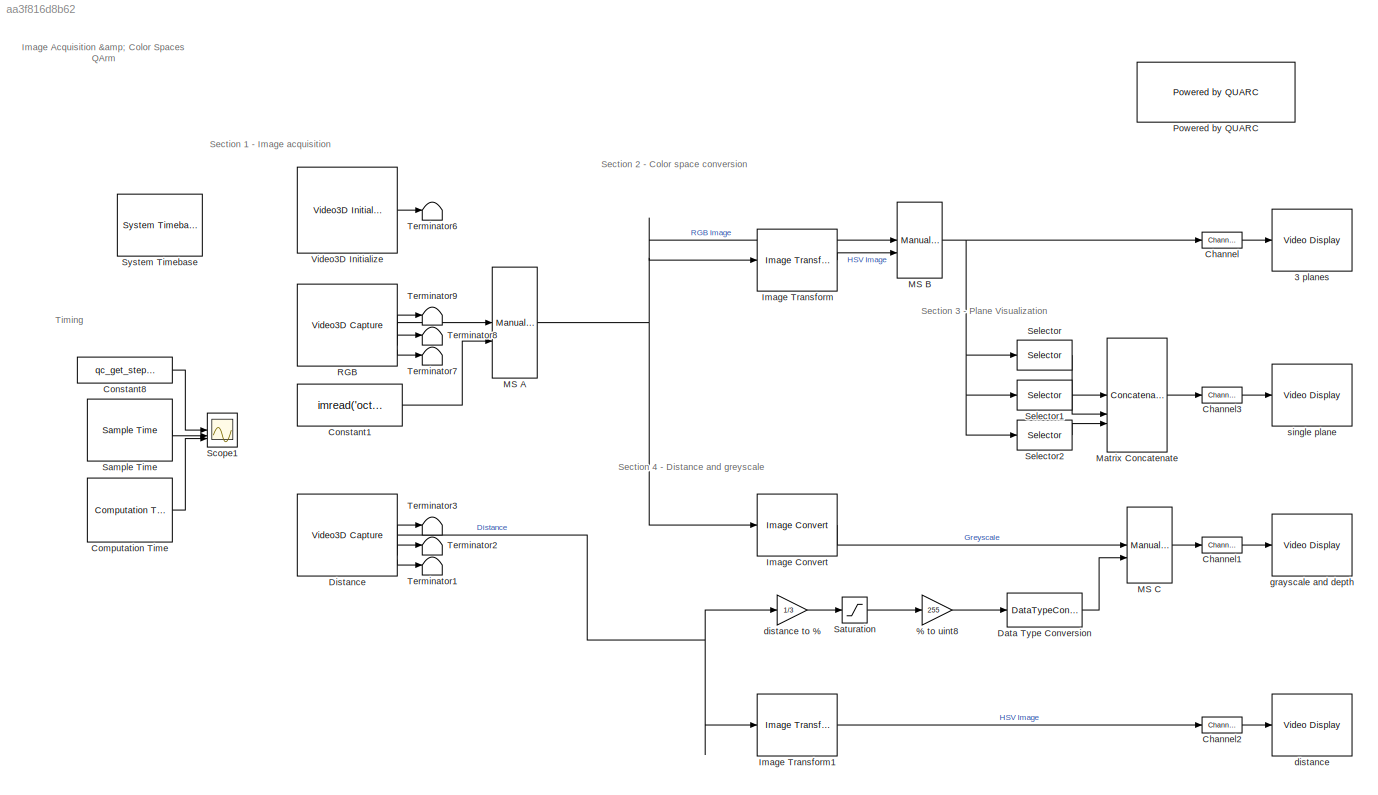
MODEL slx_aa3f816d8b62
KIND model
CONFIG AbsTol = auto
CONFIG EnableMultiTasking = on
CONFIG FixedStep = 1/30
CONFIG MaxStep = auto
CONFIG MinStep = auto
CONFIG RelTol = 1e-3
CONFIG SampleTimeConstraint = Unconstrained
CONFIG SolverName = ode4
CONFIG StartTime = 0.0
CONFIG StopTime = inf
BLOCK [Gain] % to uint8
  Gain = 255
BLOCK [Reference] 3 planes  REF=quarc_library/Multimedia/Video Display
  SourceBlock = quarc_library/Multimedia/Video Display
  SourceProductName = QUARC Targets
  SourceType = Video Display
  Tag = ImageAcquisitionAndColorSpaces/3 planes
  UserDataPersistent = on
BLOCK [Reference] Channel  REF=quarc_library/Signal Routing/Channel
  SourceBlock = quarc_library/Signal Routing/Channel
  SourceProductName = QUARC Targets
  SourceType = Channel
BLOCK [Reference] Channel1  REF=quarc_library/Signal Routing/Channel
  SourceBlock = quarc_library/Signal Routing/Channel
  SourceProductName = QUARC Targets
  SourceType = Channel
BLOCK [Reference] Channel2  REF=quarc_library/Signal Routing/Channel
  SourceBlock = quarc_library/Signal Routing/Channel
  SourceProductName = QUARC Targets
  SourceType = Channel
BLOCK [Reference] Channel3  REF=quarc_library/Signal Routing/Channel
  SourceBlock = quarc_library/Signal Routing/Channel
  SourceProductName = QUARC Targets
  SourceType = Channel
BLOCK [Reference] Computation Time  REF=quarc_library/Sources/Time/Computation Time
  SourceBlock = quarc_library/Sources/Time/Computation Time
  SourceProductName = QUARC Targets
  SourceType = Computation Time
BLOCK [Constant] Constant1
  Value = imread('octopus.jpg');
BLOCK [Constant] Constant8
  Value = qc_get_step_size
BLOCK [DataTypeConversion] Data Type Conversion
  OutDataTypeStr = uint8
  RndMeth = Floor
  SaturateOnIntegerOverflow = off
BLOCK [Reference] Distance  REF=quarc_library/Multimedia/Video3D Capture
  SourceBlock = quarc_library/Multimedia/Video3D Capture
  SourceProductName = QUARC Targets
  SourceType = Video3D Capture
  UserDataPersistent = on
BLOCK [Reference] Image Convert  REF=quarc_library/Image Processing/Generic/Image Convert
  AttributesFormatString = (%<input_format>)
  SourceBlock = quarc_library/Image Processing/Generic/Image Convert
  SourceProductName = QUARC Targets
  SourceType = Image Convert
BLOCK [Reference] Image Transform  REF=quarc_library/Image Processing/Generic/Image Transform
  AttributesFormatString = (%<algorithm>)
  SourceBlock = quarc_library/Image Processing/Generic/Image Transform
  SourceProductName = QUARC Targets
  SourceType = Image Transform
BLOCK [Reference] Image Transform1  REF=quarc_library/Image Processing/Generic/Image Transform
  AttributesFormatString = (%<algorithm>)
  SourceBlock = quarc_library/Image Processing/Generic/Image Transform
  SourceProductName = QUARC Targets
  SourceType = Image Transform
BLOCK [ManualSwitch] MS A
  NameLocation = top
BLOCK [ManualSwitch] MS B
  NameLocation = top
BLOCK [ManualSwitch] MS C
  NameLocation = top
BLOCK [Concatenate] Matrix Concatenate
  ConcatenateDimension = 2
  Mode = Multidimensional array
  NumInputs = 3
BLOCK [Reference] Powered by QUARC  REF=quarc_library/Logos/Powered by QUARC
  SourceBlock = quarc_library/Logos/Powered by QUARC
  SourceProductName = QUARC Targets
  SourceType = Powered by QUARC
BLOCK [Reference] RGB  REF=quarc_library/Multimedia/Video3D Capture
  SourceBlock = quarc_library/Multimedia/Video3D Capture
  SourceProductName = QUARC Targets
  SourceType = Video3D Capture
  UserDataPersistent = on
BLOCK [Reference] Sample Time  REF=quarc_library/Sources/Time/Sample Time
  Priority = -99
  SourceBlock = quarc_library/Sources/Time/Sample Time
  SourceProductName = QUARC Targets
  SourceType = Sample Time
BLOCK [Saturate] Saturation
  LowerLimit = 0
  UpperLimit = 1
BLOCK [Scope] Scope1
  Floating = off
  NumInputPorts = 3
  ScopeSpecificationString = Simulink.scopes.TimeScopeBlockCfg('CurrentConfiguration', extmgr.ConfigurationSet(extmgr.Configuration('Core','General UI',true),extmgr.Configuration('Core','Source UI',true),extmgr.Configuration('Sources','WiredSimulink',true),extmgr.Configuration('Visuals','Time Domain',true,'SerializedDisplays',{struct('MinYLimReal','-0.01344','MaxYLimReal','0.45223','YLabelReal','','MinYLimMag','0.00000','MaxY...<+1383ch>
BLOCK [Selector] Selector
  IndexOptions = Select all,Select all,Index vector (dialog)
  Indices = [1 3],1,1
  InputPortWidth = 3
  NumberOfDimensions = 3
  OutputSizes = 1,1,1
BLOCK [Selector] Selector1
  IndexOptions = Select all,Select all,Index vector (dialog)
  Indices = [1 3],1,2
  InputPortWidth = 3
  NumberOfDimensions = 3
  OutputSizes = 1,1,1
BLOCK [Selector] Selector2
  IndexOptions = Select all,Select all,Index vector (dialog)
  Indices = [1 3],1,3
  InputPortWidth = 3
  NumberOfDimensions = 3
  OutputSizes = 1,1,1
BLOCK [Reference] System Timebase  REF=quarc_library/Advanced/Timing/System Timebase
  SourceBlock = quarc_library/Advanced/Timing/System Timebase
  SourceProductName = QUARC Targets
  SourceType = System Timebase
BLOCK [Terminator] Terminator1
BLOCK [Terminator] Terminator2
BLOCK [Terminator] Terminator3
BLOCK [Terminator] Terminator6
BLOCK [Terminator] Terminator7
BLOCK [Terminator] Terminator8
BLOCK [Terminator] Terminator9
BLOCK [Reference] Video3D Initialize  REF=quarc_library/Multimedia/Video3D Initialize
  SourceBlock = quarc_library/Multimedia/Video3D Initialize
  SourceProductName = QUARC Targets
  SourceType = Video3D Initialize
BLOCK [Reference] distance  REF=quarc_library/Multimedia/Video Display
  SourceBlock = quarc_library/Multimedia/Video Display
  SourceProductName = QUARC Targets
  SourceType = Video Display
  Tag = ImageAcquisitionAndColorSpaces/distance
  UserDataPersistent = on
BLOCK [Gain] distance to %
  Gain = 1/3
BLOCK [Reference] grayscale and depth  REF=quarc_library/Multimedia/Video Display
  SourceBlock = quarc_library/Multimedia/Video Display
  SourceProductName = QUARC Targets
  SourceType = Video Display
  Tag = ImageAcquisitionAndColorSpaces/grayscale and depth
  UserDataPersistent = on
BLOCK [Reference] single plane  REF=quarc_library/Multimedia/Video Display
  SourceBlock = quarc_library/Multimedia/Video Display
  SourceProductName = QUARC Targets
  SourceType = Video Display
  Tag = ImageAcquisitionAndColorSpaces/single plane
  UserDataPersistent = on
ANNOTATION (root): Image Acquisition & Color Spaces QArm
ANNOTATION (root): Section 1 - Image acquisition
ANNOTATION (root): Section 2 - Color space conversion
ANNOTATION (root): Section 3 - Plane Visualization
ANNOTATION (root): Section 4 - Distance and greyscale
ANNOTATION (root): Timing
LINE % to uint8:1 -> Data Type Conversion:1
LINE Channel1:1 -> grayscale and depth:1
LINE Channel2:1 -> distance:1
LINE Channel3:1 -> single plane:1
LINE Channel:1 -> 3 planes:1
LINE Computation Time:1 -> Scope1:3
LINE Constant1:1 -> MS A:2
LINE Constant8:1 -> Scope1:1
LINE Data Type Conversion:1 -> MS C:2
NET Distance:1 -> Image Transform1:1, distance to %:1
LINE Distance:2 -> Terminator3:1
LINE Distance:3 -> Terminator2:1
LINE Distance:4 -> Terminator1:1
LINE Image Convert:1 -> MS C:1
LINE Image Transform1:1 -> Channel2:1
LINE Image Transform:1 -> MS B:2
NET MS A:1 -> Image Convert:1, Image Transform:1, MS B:1
NET MS B:1 -> Channel:1, Selector1:1, Selector2:1, Selector:1
LINE MS C:1 -> Channel1:1
LINE Matrix Concatenate:1 -> Channel3:1
LINE RGB:1 -> MS A:1
LINE RGB:2 -> Terminator9:1
LINE RGB:3 -> Terminator8:1
LINE RGB:4 -> Terminator7:1
LINE Sample Time:1 -> Scope1:2
LINE Saturation:1 -> % to uint8:1
LINE Selector1:1 -> Matrix Concatenate:2
LINE Selector2:1 -> Matrix Concatenate:3
LINE Selector:1 -> Matrix Concatenate:1
LINE Video3D Initialize:1 -> Terminator6:1
LINE distance to %:1 -> Saturation:1
note: NET lines group one-source signal fan-out (src -> all destinations, sorted); 1:1 wires keep LINE
